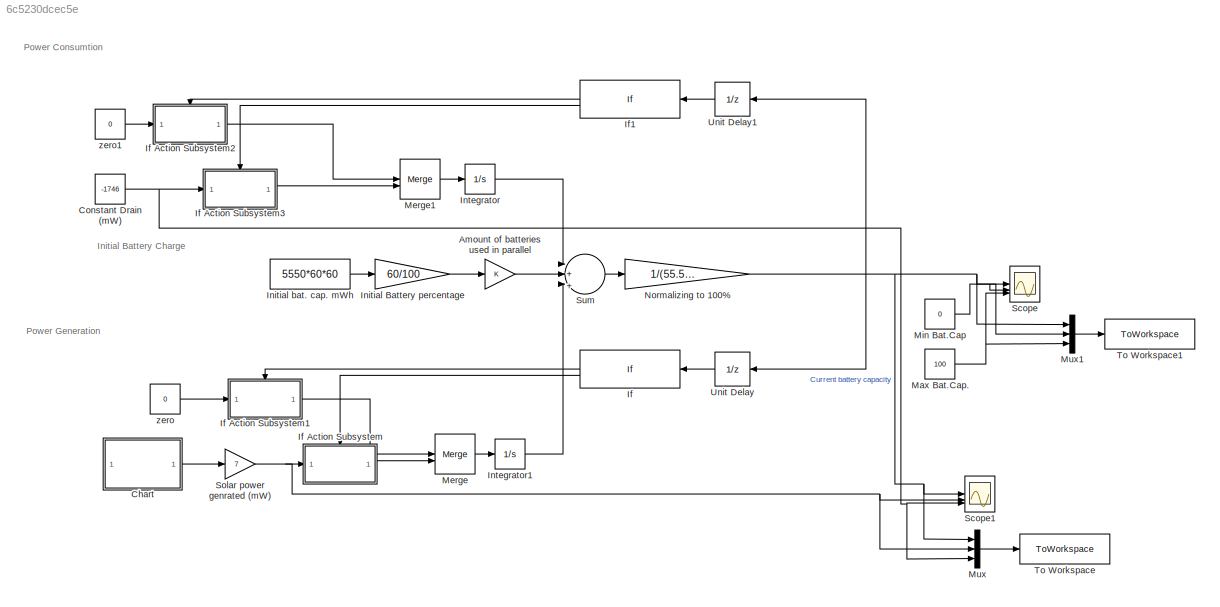
MODEL slx_6c5230dcec5e
KIND model
CONFIG AbsTol = auto
CONFIG EnableMultiTasking = off
CONFIG FixedStep = 1
CONFIG MaxStep = auto
CONFIG MinStep = auto
CONFIG RelTol = 1e-3
CONFIG SampleTimeConstraint = Unconstrained
CONFIG SolverName = FixedStepAuto
CONFIG StartTime = 0.0
CONFIG StopTime = 35000
BLOCK [Gain] Amount of batteries used in parallel
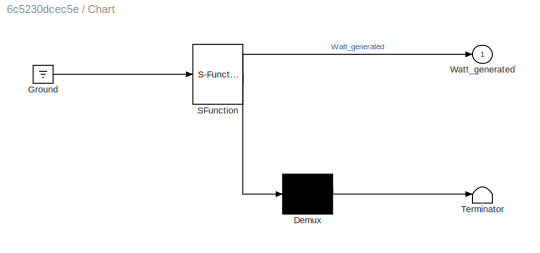
BLOCK [SubSystem] Chart
  ErrorFcn = Stateflow.Translate.translate
  PermitHierarchicalResolution = ExplicitOnly
  SFBlockType = Chart
  TreatAsAtomicUnit = on
BLOCK [Demux] Chart/ Demux 
  Outputs = 1
BLOCK [Ground] Chart/ Ground 
BLOCK [S-Function] Chart/ SFunction 
  EnableBusSupport = on
  FunctionName = sf_sfun
  PortCounts = [1 2]
  SFcnIsStateOwnerBlock = off
  SFunctionDeploymentMode = off
  Tag = Stateflow S-Function 3
BLOCK [Terminator] Chart/ Terminator 
BLOCK [Outport] Chart/Watt_generated
BLOCK [Constant] Constant Drain (mW)
  Value = -1746
BLOCK [If] If
  IfExpression = u1 >= 100
  NameLocation = top
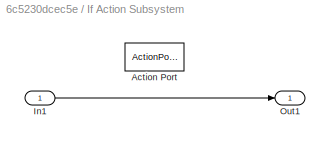
BLOCK [SubSystem] If Action Subsystem
  TreatAsAtomicUnit = on
BLOCK [ActionPort] If Action Subsystem/Action Port
  ActionPortLabel = else
BLOCK [Inport] If Action Subsystem/In1
BLOCK [Outport] If Action Subsystem/Out1
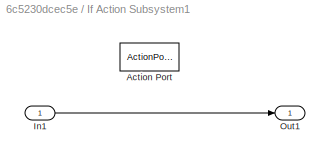
BLOCK [SubSystem] If Action Subsystem1
  TreatAsAtomicUnit = on
BLOCK [ActionPort] If Action Subsystem1/Action Port
  ActionPortLabel = if(u1 >= 100)
BLOCK [Inport] If Action Subsystem1/In1
BLOCK [Outport] If Action Subsystem1/Out1
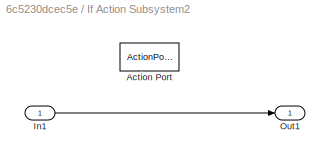
BLOCK [SubSystem] If Action Subsystem2
  TreatAsAtomicUnit = on
BLOCK [ActionPort] If Action Subsystem2/Action Port
  ActionPortLabel = if(u1 <= 0)
BLOCK [Inport] If Action Subsystem2/In1
BLOCK [Outport] If Action Subsystem2/Out1
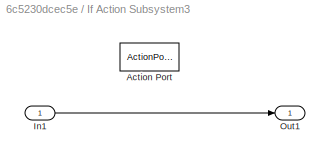
BLOCK [SubSystem] If Action Subsystem3
  TreatAsAtomicUnit = on
BLOCK [ActionPort] If Action Subsystem3/Action Port
  ActionPortLabel = else
BLOCK [Inport] If Action Subsystem3/In1
BLOCK [Outport] If Action Subsystem3/Out1
BLOCK [If] If1
  IfExpression = u1 <= 0
  NameLocation = top
BLOCK [Gain] Initial Battery percentage
  Gain = 60/100
BLOCK [Constant] Initial bat. cap. mWh
  Value = 5550*60*60
BLOCK [Integrator] Integrator
BLOCK [Integrator] Integrator1
BLOCK [Constant] Max Bat.Cap.
  Value = 100
BLOCK [Merge] Merge
BLOCK [Merge] Merge1
BLOCK [Constant] Min Bat.Cap
  Value = 0
BLOCK [Mux] Mux
  DisplayOption = bar
  Inputs = 3
BLOCK [Mux] Mux1
  DisplayOption = bar
  Inputs = 3
BLOCK [Gain] Normalizing to 100%
  Gain = 1/(55.5*60*60)
BLOCK [Scope] Scope
  Floating = off
  NumInputPorts = 3
  ScopeSpecificationString = Simulink.scopes.TimeScopeBlockCfg('CurrentConfiguration', extmgr.ConfigurationSet(extmgr.Configuration('Core','General UI',true),extmgr.Configuration('Core','Source UI',true),extmgr.Configuration('Sources','WiredSimulink',true),extmgr.Configuration('Visuals','Time Domain',true,'SerializedDisplays',{struct('MinYLimReal','-12.5017','MaxYLimReal','112.5153','YLabelReal','SoC (Battery Pecentage)','Min...<+2013ch>
BLOCK [Scope] Scope1
  Floating = off
  NumInputPorts = 3
  ScopeSpecificationString = Simulink.scopes.TimeScopeBlockCfg('CurrentConfiguration', extmgr.ConfigurationSet(extmgr.Configuration('Core','General UI',true),extmgr.Configuration('Core','Source UI',true),extmgr.Configuration('Sources','WiredSimulink',true,'DataLoggingVariableName','ScopeData1'),extmgr.Configuration('Visuals','Time Domain',true,'SerializedDisplays',{struct('MinYLimReal','-7.51693','MaxYLimReal','67.50188','YLa...<+4322ch>
BLOCK [Gain] Solar power genrated (mW)
  Gain = 7
BLOCK [Sum] Sum
  Inputs = |+|+|+|
  OutMax = 1
  OutMin = 0
BLOCK [ToWorkspace] To Workspace
  FixptAsFi = on
  MaxDataPoints = inf
  SampleTime = -1
  SaveFormat = Timeseries
  VariableName = simout
BLOCK [ToWorkspace] To Workspace1
  FixptAsFi = on
  MaxDataPoints = inf
  SampleTime = -1
  SaveFormat = Timeseries
  VariableName = simout1
BLOCK [UnitDelay] Unit Delay
  HasFrameUpgradeWarning = on
  InitialCondition = 100
  NameLocation = top
  SampleTime = -1
BLOCK [UnitDelay] Unit Delay1
  HasFrameUpgradeWarning = on
  InitialCondition = 50
  NameLocation = top
  SampleTime = -1
BLOCK [Constant] zero
  Value = 0
BLOCK [Constant] zero1
  Value = 0
ANNOTATION (root): Initial Battery Charge
ANNOTATION (root): Power Consumtion
ANNOTATION (root): Power Generation
LINE Amount of batteries used in parallel:1 -> Sum:2
LINE Chart:1 -> Solar power genrated (mW):1
NET Constant Drain (mW):1 -> If Action Subsystem3:1, Mux:3, Scope1:3
LINE If Action Subsystem/In1:1 -> If Action Subsystem/Out1:1
LINE If Action Subsystem1/In1:1 -> If Action Subsystem1/Out1:1
LINE If Action Subsystem1:1 -> Merge:1
LINE If Action Subsystem2/In1:1 -> If Action Subsystem2/Out1:1
LINE If Action Subsystem2:1 -> Merge1:1
LINE If Action Subsystem3/In1:1 -> If Action Subsystem3/Out1:1
LINE If Action Subsystem3:1 -> Merge1:2
LINE If Action Subsystem:1 -> Merge:2
LINE If1:1 -> If Action Subsystem2:ifaction
LINE If1:2 -> If Action Subsystem3:ifaction
LINE If:1 -> If Action Subsystem1:ifaction
LINE If:2 -> If Action Subsystem:ifaction
LINE Initial Battery percentage:1 -> Amount of batteries used in parallel:1
LINE Initial bat. cap. mWh:1 -> Initial Battery percentage:1
LINE Integrator1:1 -> Sum:3
LINE Integrator:1 -> Sum:1
NET Max Bat.Cap.:1 -> Mux1:3, Scope:3
LINE Merge1:1 -> Integrator:1
LINE Merge:1 -> Integrator1:1
NET Min Bat.Cap:1 -> Mux1:2, Scope:2
LINE Mux1:1 -> To Workspace1:1
LINE Mux:1 -> To Workspace:1
NET Normalizing to 100%:1 -> Mux1:1, Mux:1, Scope1:1, Scope:1, Unit Delay1:1, Unit Delay:1
NET Solar power genrated (mW):1 -> If Action Subsystem:1, Mux:2, Scope1:2
LINE Sum:1 -> Normalizing to 100%:1
LINE Unit Delay1:1 -> If1:1
LINE Unit Delay:1 -> If:1
LINE zero1:1 -> If Action Subsystem2:1
LINE zero:1 -> If Action Subsystem1:1
note: NET lines group one-source signal fan-out (src -> all destinations, sorted); 1:1 wires keep LINE
CHART Chart states=2 transitions=3
  STATE_LABEL 'in_the_sun\nentry:\nWatt_generated=5.4*60;'
  STATE_LABEL 'no_in_the_sun\nentry:\nWatt_generated=0;'
CHART  states=0 transitions=0
